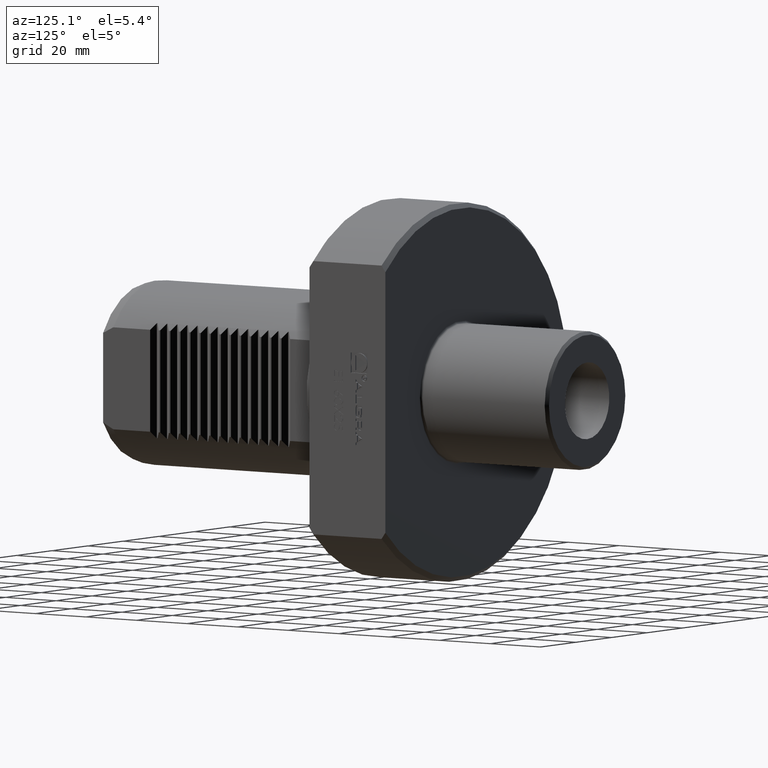
[diagram: clean part render]
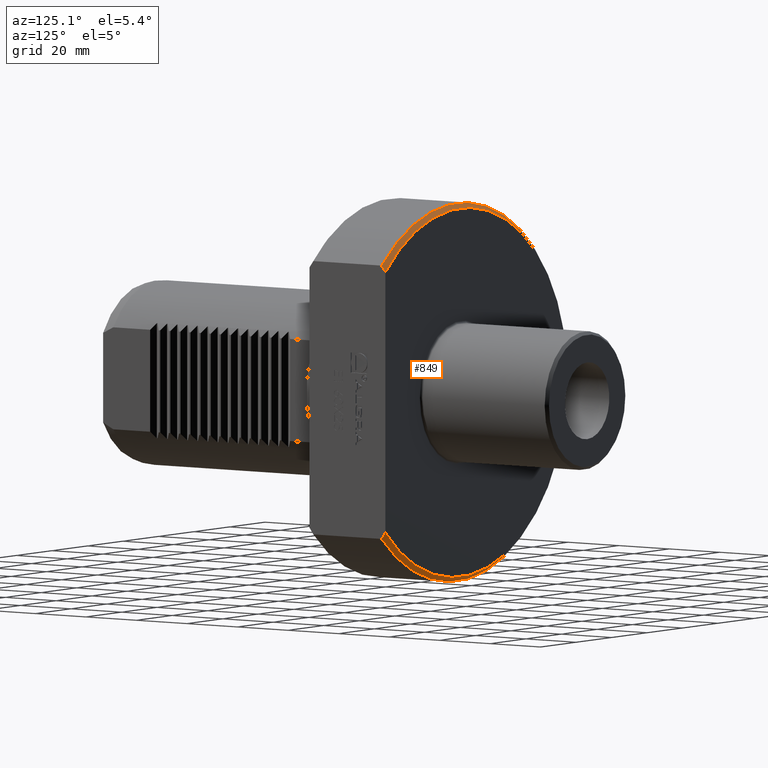
[diagram: same view with one face highlighted and labeled with its STEP entity id]
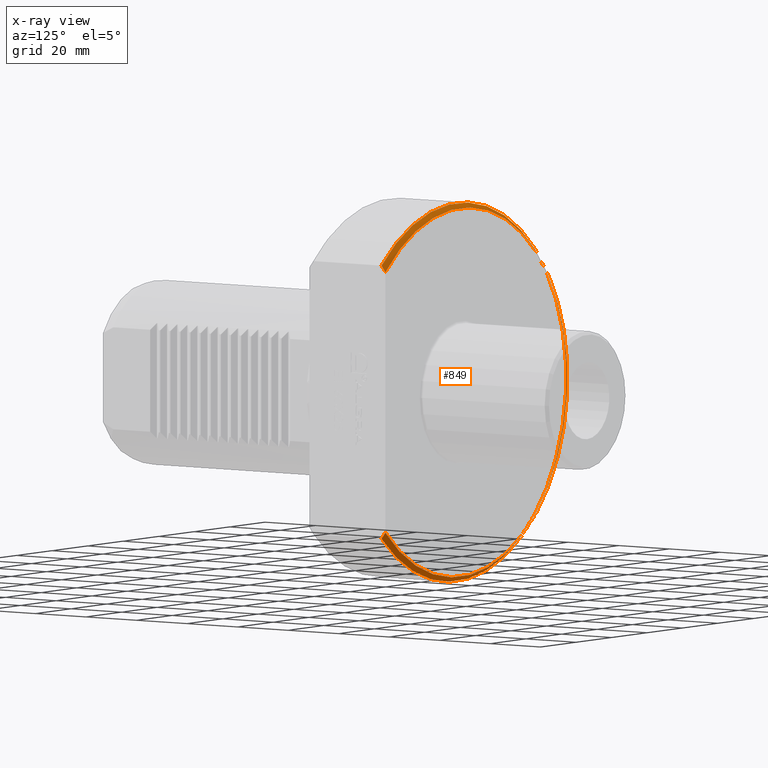
[diagram: x-ray of the same camera — body ghosted, the highlighted face saturated]
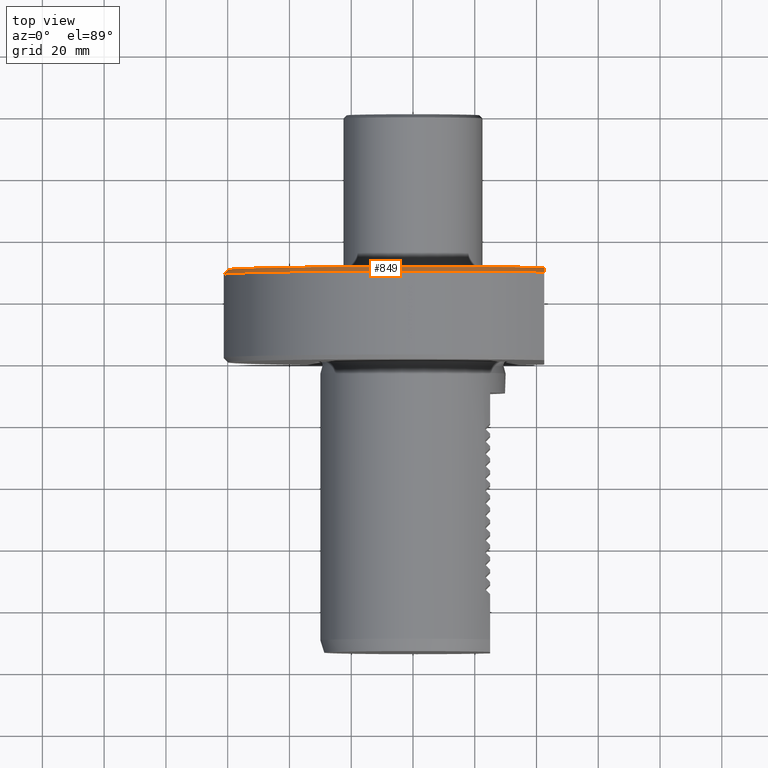
[diagram: same view with one face highlighted and labeled with its STEP entity id]
A machine part, auxiliary view. The second image highlights one B-rep face of the part: STEP entity #849.
The next image is the same camera in x-ray: the body ghosted, the highlighted face saturated — about 8% of this face is hidden behind the body in this view.
A second angle (top view) of the same face is appended — the face is thin or edge-on in the first view.
In plain terms, the highlighted conical surface has half-angle 45 deg.
Its self-contained STEP definition (entity closure, byte-faithful):
#524 = DIRECTION ( 'NONE',  ( -1.295371175675670281E-16, 1.000000000000000000, -0.000000000000000000 ) ) ;
#566 = VERTEX_POINT ( 'NONE', #11702 ) ;
#621 = ORIENTED_EDGE ( 'NONE', *, *, #7534, .F. ) ;
#849 = ADVANCED_FACE ( 'Defeature completata1_12', ( #2266 ), #9533, .T. ) ;
#1345 = ORIENTED_EDGE ( 'NONE', *, *, #10950, .T. ) ;
#1557 = DIRECTION ( 'NONE',  ( -1.000000000000000000, -1.156482317317871478E-16, 0.000000000000000000 ) ) ;
#1942 = EDGE_CURVE ( 'NONE', #2522, #13934, #5758, .T. ) ;
#2255 = CARTESIAN_POINT ( 'NONE',  ( 42.50000000000000000, 30.00000000000001421, -42.35268586524351520 ) ) ;
#2266 = FACE_OUTER_BOUND ( 'NONE', #3997, .T. ) ;
#2358 = CIRCLE ( 'NONE', #3487, 59.99999999999999289 ) ;
#2522 = VERTEX_POINT ( 'NONE', #4049 ) ;
#3272 = CARTESIAN_POINT ( 'NONE',  ( 42.50000000000000711, 28.50000000000000711, 44.45222154178571117 ) ) ;
#3487 = AXIS2_PLACEMENT_3D ( 'NONE', #10046, #524, #1557 ) ;
#3997 = EDGE_LOOP ( 'NONE', ( #5669, #1345, #621, #10867 ) ) ;
#4049 = CARTESIAN_POINT ( 'NONE',  ( 42.49999999999998579, 28.49999999999999645, -44.45222154178573959 ) ) ;
#4497 = CARTESIAN_POINT ( 'NONE',  ( 42.49999999999998579, 29.00421119167408790, -43.75464137115675811 ) ) ;
#4636 = CARTESIAN_POINT ( 'NONE',  ( 42.50000000000000000, 30.00000000000001421, -42.35268586524351520 ) ) ;
#5170 = CARTESIAN_POINT ( 'NONE',  ( 42.50000000000000711, 30.00000000000001066, 42.35268586524350098 ) ) ;
#5173 = DIRECTION ( 'NONE',  ( -1.295371175675670281E-16, 1.000000000000000000, -0.000000000000000000 ) ) ;
#5360 = VERTEX_POINT ( 'NONE', #3272 ) ;
#5669 = ORIENTED_EDGE ( 'NONE', *, *, #1942, .F. ) ;
#5711 = DIRECTION ( 'NONE',  ( 1.295371175675670281E-16, -1.000000000000000000, 0.000000000000000000 ) ) ;
#5758 = B_SPLINE_CURVE_WITH_KNOTS ( 'NONE', 3,
 ( #9898, #4497, #13126, #4636 ),
 .UNSPECIFIED., .F., .F.,
 ( 4, 4 ),
 ( 1.184489779817715158E-06, 0.002560764092036736835 ),
 .UNSPECIFIED. ) ;
#6177 = B_SPLINE_CURVE_WITH_KNOTS ( 'NONE', 3,
 ( #5170, #9372, #10723, #13860 ),
 .UNSPECIFIED., .F., .F.,
 ( 4, 4 ),
 ( 0.09460675343373406432, 0.09714162107545644409 ),
 .UNSPECIFIED. ) ;
#6731 = CARTESIAN_POINT ( 'NONE',  ( -3.886113527027011730E-15, 30.00000000000000711, 0.000000000000000000 ) ) ;
#7534 = EDGE_CURVE ( 'NONE', #566, #5360, #6177, .T. ) ;
#7583 = CIRCLE ( 'NONE', #10040, 61.49999999999999289 ) ;
#8002 = DIRECTION ( 'NONE',  ( 1.000000000000000000, 1.156482317317871478E-16, 0.000000000000000000 ) ) ;
#9372 = CARTESIAN_POINT ( 'NONE',  ( 42.50000000000000711, 29.50420535931550958, 43.05506584028737649 ) ) ;
#9533 = CONICAL_SURFACE ( 'NONE', #12754, 59.99999999999999289, 0.7853981633974482790 ) ;
#9856 = EDGE_CURVE ( 'NONE', #13934, #566, #2358, .T. ) ;
#9898 = CARTESIAN_POINT ( 'NONE',  ( 42.49999999999998579, 28.49999999999999645, -44.45222154178573959 ) ) ;
#10040 = AXIS2_PLACEMENT_3D ( 'NONE', #10509, #5173, #11804 ) ;
#10046 = CARTESIAN_POINT ( 'NONE',  ( -3.886113527027011730E-15, 30.00000000000000711, 0.000000000000000000 ) ) ;
#10509 = CARTESIAN_POINT ( 'NONE',  ( -3.691807850675660867E-15, 28.50000000000000355, 0.000000000000000000 ) ) ;
#10723 = CARTESIAN_POINT ( 'NONE',  ( 42.50000000000000711, 29.00407364102547092, 43.75483167356675551 ) ) ;
#10867 = ORIENTED_EDGE ( 'NONE', *, *, #9856, .F. ) ;
#10950 = EDGE_CURVE ( 'NONE', #2522, #5360, #7583, .T. ) ;
#11702 = CARTESIAN_POINT ( 'NONE',  ( 42.50000000000000711, 30.00000000000001066, 42.35268586524350098 ) ) ;
#11804 = DIRECTION ( 'NONE',  ( -1.000000000000000000, -1.128275431529630729E-16, 0.000000000000000000 ) ) ;
#12754 = AXIS2_PLACEMENT_3D ( 'NONE', #6731, #5711, #8002 ) ;
#13126 = CARTESIAN_POINT ( 'NONE',  ( 42.49999999999998579, 29.50434494794768625, -43.05486808853304836 ) ) ;
#13860 = CARTESIAN_POINT ( 'NONE',  ( 42.50000000000000711, 28.50000000000000711, 44.45222154178571117 ) ) ;
#13934 = VERTEX_POINT ( 'NONE', #2255 ) ;